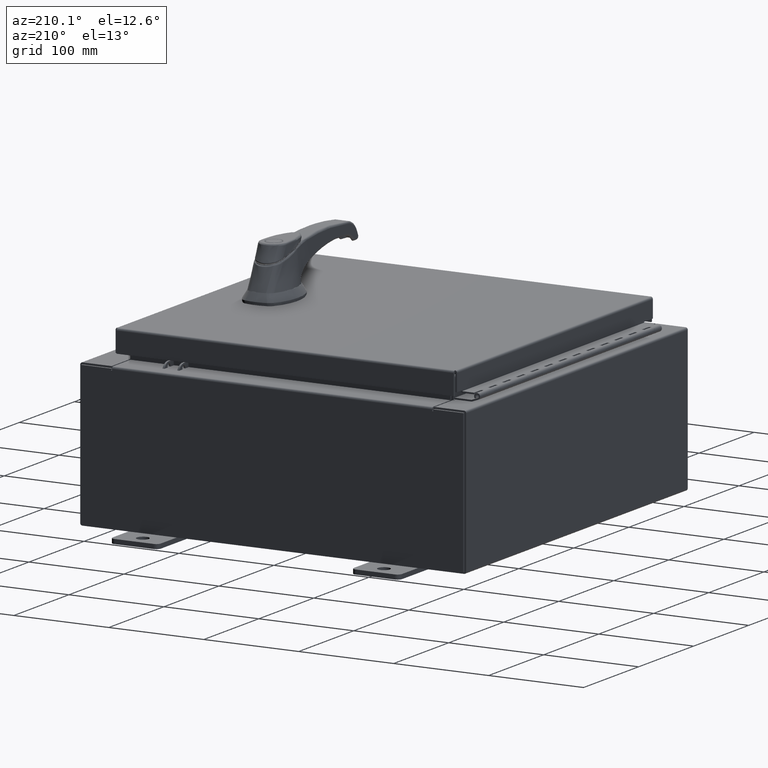
[diagram: clean part render]
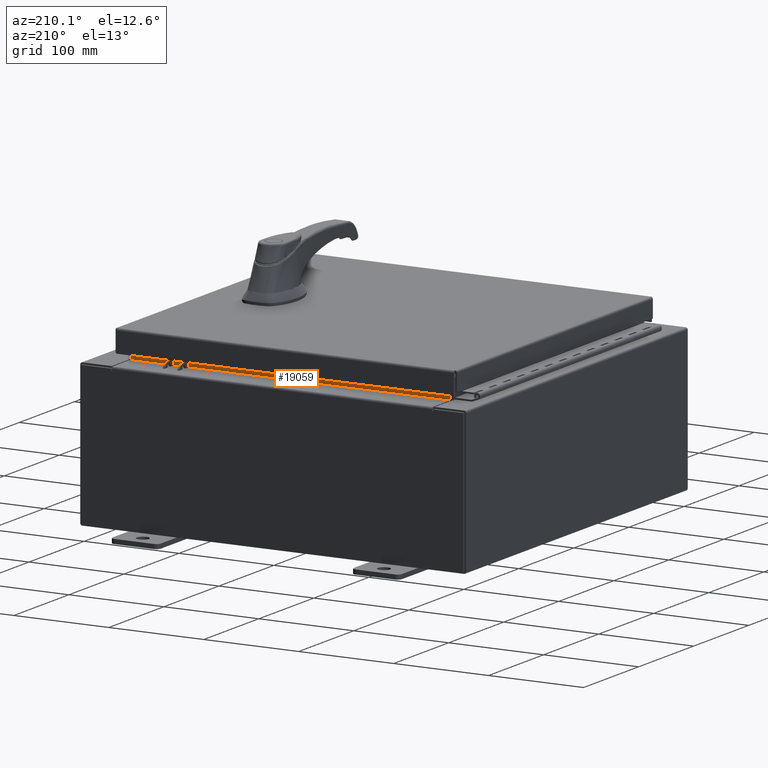
[diagram: same view with one face highlighted and labeled with its STEP entity id]
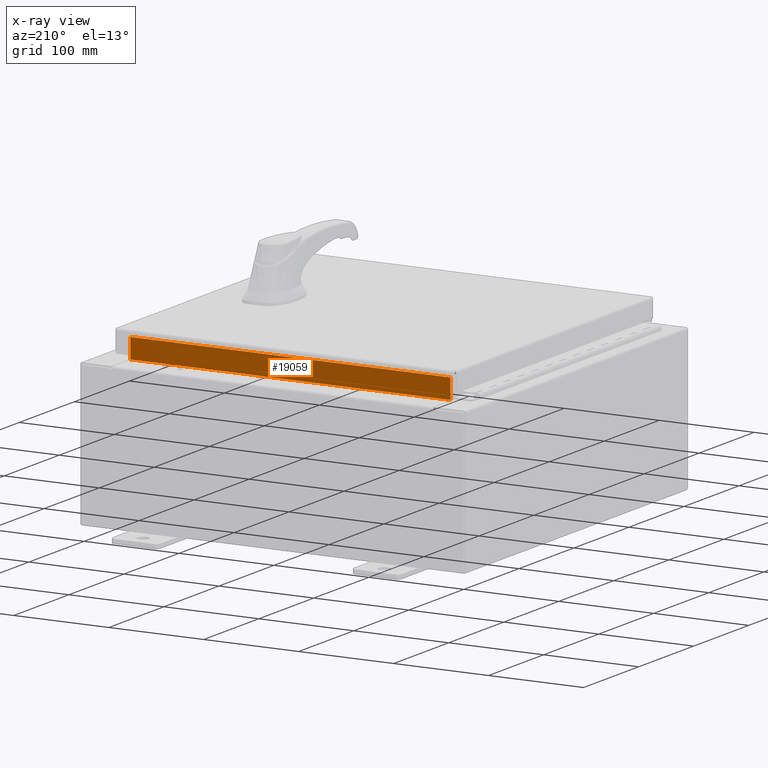
[diagram: x-ray of the same camera — body ghosted, the highlighted face saturated]
A machine part, auxiliary view. The second image highlights one B-rep face of the part: STEP entity #19059.
The next image is the same camera in x-ray: the body ghosted, the highlighted face saturated — about 0% of this face is hidden behind the body in this view.
In plain terms, the highlighted planar face has unit normal (0, 1, 0).
Its self-contained STEP definition (entity closure, byte-faithful):
#726 = VECTOR ( 'NONE', #41297, 39.37007874015748100 ) ;
#1524 = VERTEX_POINT ( 'NONE', #19486 ) ;
#5148 = EDGE_CURVE ( 'NONE', #86384, #9843, #72866, .T. ) ;
#7047 = VECTOR ( 'NONE', #104933, 39.37007874015748100 ) ;
#9843 = VERTEX_POINT ( 'NONE', #75711 ) ;
#11644 = VECTOR ( 'NONE', #50584, 39.37007874015748100 ) ;
#13008 = CARTESIAN_POINT ( 'NONE',  ( 6.637200000000000000, -1.300299999999999800, 3.925300000000005300 ) ) ;
#13900 = DIRECTION ( 'NONE',  ( 0.0000000000000000000, 1.000000000000000000, 0.0000000000000000000 ) ) ;
#14232 = LINE ( 'NONE', #91860, #11644 ) ;
#19059 = ADVANCED_FACE ( 'NONE', ( #48073 ), #54996, .T. ) ;
#19486 = CARTESIAN_POINT ( 'NONE',  ( -6.637200000000000000, -1.300300000000000000, 3.837600000000005000 ) ) ;
#23269 = CARTESIAN_POINT ( 'NONE',  ( 6.637200000000000000, -1.300300000000000000, 3.837600000000005000 ) ) ;
#27839 = LINE ( 'NONE', #66147, #726 ) ;
#28901 = VERTEX_POINT ( 'NONE', #29273 ) ;
#29273 = CARTESIAN_POINT ( 'NONE',  ( -6.637199999999999100, -1.300299999999999800, 3.013000000000005200 ) ) ;
#34651 = LINE ( 'NONE', #23269, #53889 ) ;
#41297 = DIRECTION ( 'NONE',  ( -0.0000000000000000000, -0.0000000000000000000, -1.000000000000000000 ) ) ;
#41446 = ORIENTED_EDGE ( 'NONE', *, *, #86719, .F. ) ;
#48073 = FACE_OUTER_BOUND ( 'NONE', #87332, .T. ) ;
#48436 = AXIS2_PLACEMENT_3D ( 'NONE', #63261, #13900, #71644 ) ;
#50584 = DIRECTION ( 'NONE',  ( 1.000000000000000000, 0.0000000000000000000, -4.115964553824298400E-017 ) ) ;
#52530 = EDGE_CURVE ( 'NONE', #28901, #86384, #14232, .T. ) ;
#53889 = VECTOR ( 'NONE', #81026, 39.37007874015748100 ) ;
#54284 = CARTESIAN_POINT ( 'NONE',  ( 6.637200000000000900, -1.300299999999999800, 3.013000000000005200 ) ) ;
#54996 = PLANE ( 'NONE',  #48436 ) ;
#56714 = ORIENTED_EDGE ( 'NONE', *, *, #78025, .F. ) ;
#63261 = CARTESIAN_POINT ( 'NONE',  ( 0.0000000000000000000, -1.300299999999999800, 0.0000000000000000000 ) ) ;
#66147 = CARTESIAN_POINT ( 'NONE',  ( -6.637200000000000000, -1.300299999999999800, 3.000000000000005300 ) ) ;
#70321 = ORIENTED_EDGE ( 'NONE', *, *, #52530, .F. ) ;
#71644 = DIRECTION ( 'NONE',  ( 0.0000000000000000000, -0.0000000000000000000, 1.000000000000000000 ) ) ;
#72866 = LINE ( 'NONE', #13008, #7047 ) ;
#75711 = CARTESIAN_POINT ( 'NONE',  ( 6.637200000000000000, -1.300299999999999800, 3.837600000000005000 ) ) ;
#78025 = EDGE_CURVE ( 'NONE', #9843, #1524, #34651, .T. ) ;
#81026 = DIRECTION ( 'NONE',  ( -1.000000000000000000, -0.0000000000000000000, -0.0000000000000000000 ) ) ;
#86384 = VERTEX_POINT ( 'NONE', #54284 ) ;
#86719 = EDGE_CURVE ( 'NONE', #1524, #28901, #27839, .T. ) ;
#87332 = EDGE_LOOP ( 'NONE', ( #41446, #56714, #94736, #70321 ) ) ;
#91860 = CARTESIAN_POINT ( 'NONE',  ( -6.637200000000000000, -1.300299999999999800, 3.013000000000005200 ) ) ;
#94736 = ORIENTED_EDGE ( 'NONE', *, *, #5148, .F. ) ;
#104933 = DIRECTION ( 'NONE',  ( -0.0000000000000000000, -0.0000000000000000000, 1.000000000000000000 ) ) ;